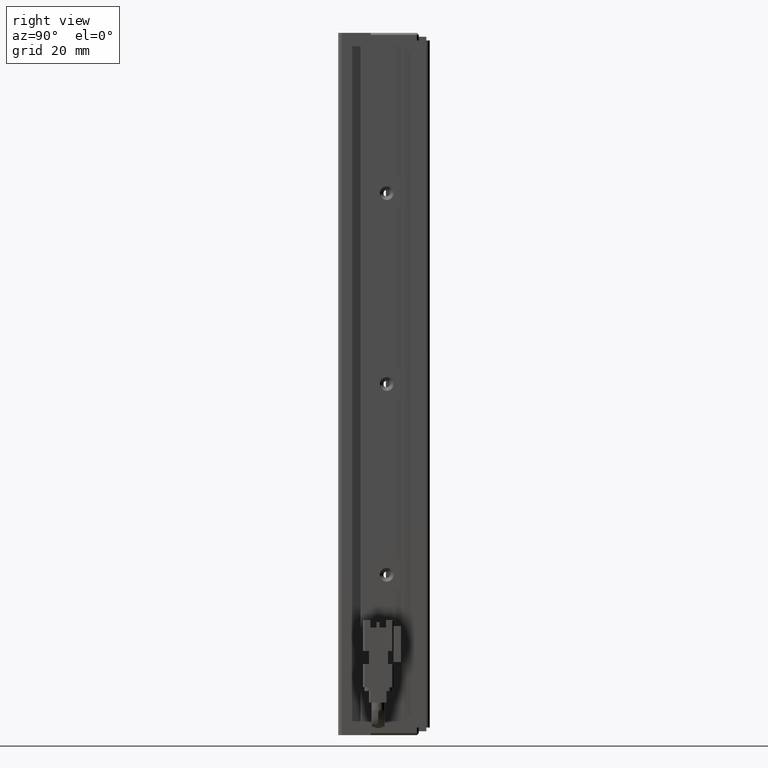
[diagram: clean part render]
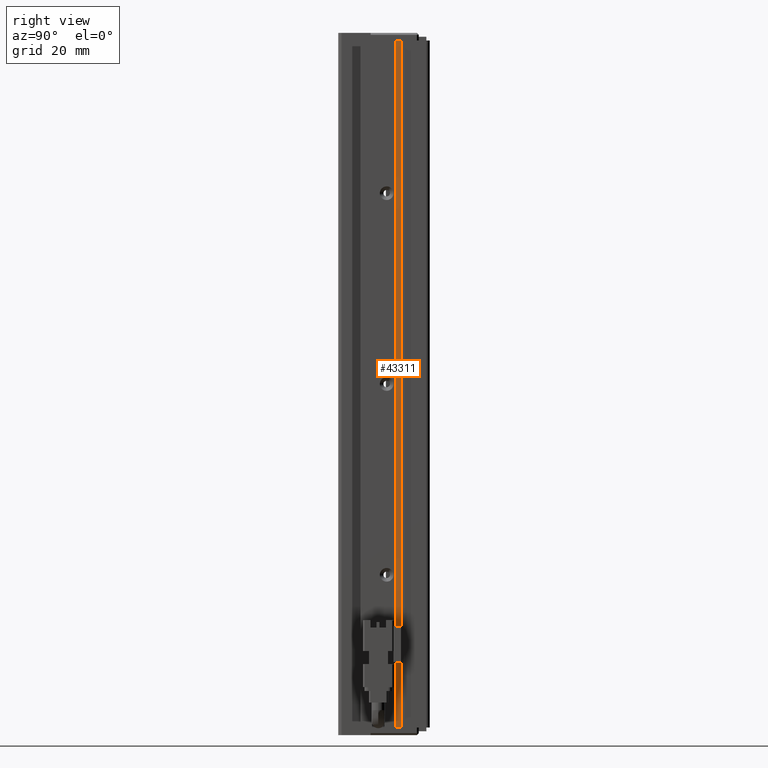
[diagram: same view with one face highlighted and labeled with its STEP entity id]
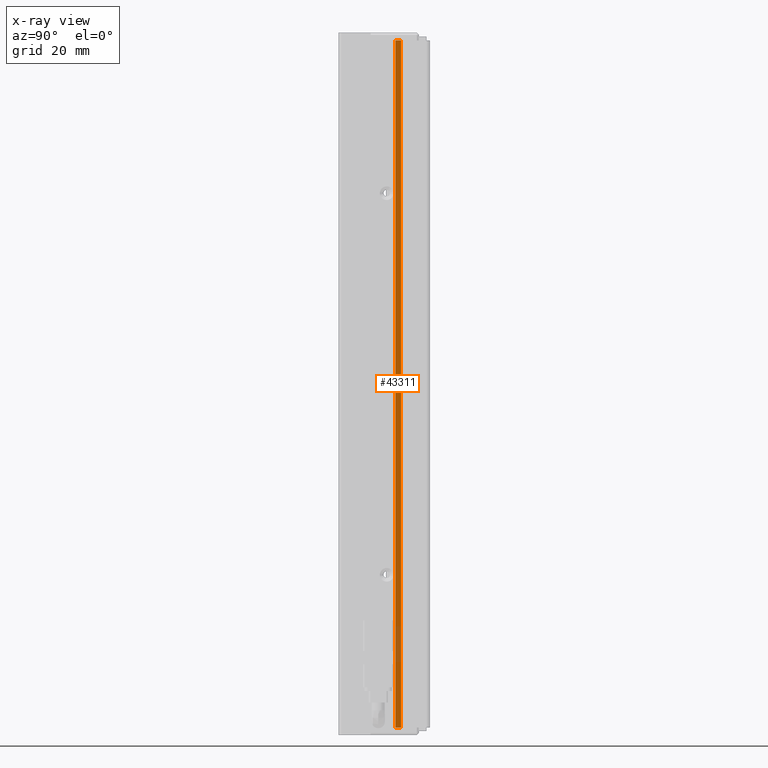
[diagram: x-ray of the same camera — body ghosted, the highlighted face saturated]
A machine part, right view. The second image highlights one B-rep face of the part: STEP entity #43311.
The next image is the same camera in x-ray: the body ghosted, the highlighted face saturated — about 5% of this face is hidden behind the body in this view.
In plain terms, the highlighted planar face has unit normal (1, 0, -0).
Its self-contained STEP definition (entity closure, byte-faithful):
#81 = CARTESIAN_POINT ( 'NONE',  ( 50.92537974683541800, 25.99073232304837700, -205.0000000000000300 ) ) ;
#800 = EDGE_LOOP ( 'NONE', ( #39021, #40956, #33603, #33309 ) ) ;
#3511 = VECTOR ( 'NONE', #10371, 1000.000000000000000 ) ;
#4401 = DIRECTION ( 'NONE',  ( -1.156482317317875500E-015, 1.000000000000000000, 0.0000000000000000000 ) ) ;
#6630 = EDGE_CURVE ( 'NONE', #31953, #28653, #19250, .T. ) ;
#7853 = DIRECTION ( 'NONE',  ( 1.000000000000000000, 1.156482317317875500E-015, -0.0000000000000000000 ) ) ;
#9641 = CARTESIAN_POINT ( 'NONE',  ( 50.92537974683541800, 27.49073232304837000, -205.0000000000000300 ) ) ;
#10371 = DIRECTION ( 'NONE',  ( 1.156482317317875500E-015, -1.000000000000000000, -0.0000000000000000000 ) ) ;
#11954 = PLANE ( 'NONE',  #38753 ) ;
#13475 = LINE ( 'NONE', #25937, #3511 ) ;
#13611 = CARTESIAN_POINT ( 'NONE',  ( 50.92537974683541800, 27.49073232304837000, -23.00000000000000700 ) ) ;
#13753 = DIRECTION ( 'NONE',  ( 0.0000000000000000000, 0.0000000000000000000, 1.000000000000000000 ) ) ;
#14183 = EDGE_CURVE ( 'NONE', #41738, #31953, #30752, .T. ) ;
#15375 = EDGE_CURVE ( 'NONE', #28653, #46902, #13475, .T. ) ;
#16015 = FACE_OUTER_BOUND ( 'NONE', #800, .T. ) ;
#18066 = VECTOR ( 'NONE', #28809, 1000.000000000000000 ) ;
#19250 = LINE ( 'NONE', #13611, #18066 ) ;
#22994 = VECTOR ( 'NONE', #13753, 1000.000000000000000 ) ;
#23267 = CARTESIAN_POINT ( 'NONE',  ( 50.92537974683544600, 7.083797468354449100, -205.0000000000000300 ) ) ;
#23282 = CARTESIAN_POINT ( 'NONE',  ( 50.92537974683541800, 27.49073232304837000, -24.99999999999999300 ) ) ;
#25937 = CARTESIAN_POINT ( 'NONE',  ( 50.92537974683544600, 7.083797468354449100, -25.00000000000000700 ) ) ;
#28653 = VERTEX_POINT ( 'NONE', #23282 ) ;
#28809 = DIRECTION ( 'NONE',  ( 0.0000000000000000000, 0.0000000000000000000, 1.000000000000000000 ) ) ;
#30752 = LINE ( 'NONE', #23267, #45970 ) ;
#31953 = VERTEX_POINT ( 'NONE', #9641 ) ;
#33309 = ORIENTED_EDGE ( 'NONE', *, *, #38452, .F. ) ;
#33603 = ORIENTED_EDGE ( 'NONE', *, *, #15375, .T. ) ;
#34064 = CARTESIAN_POINT ( 'NONE',  ( 50.92537974683544600, 7.083797468354449100, -23.00000000000000700 ) ) ;
#37566 = LINE ( 'NONE', #47437, #22994 ) ;
#37625 = DIRECTION ( 'NONE',  ( -1.156482317317875500E-015, 1.000000000000000000, 0.0000000000000000000 ) ) ;
#38452 = EDGE_CURVE ( 'NONE', #41738, #46902, #37566, .T. ) ;
#38753 = AXIS2_PLACEMENT_3D ( 'NONE', #34064, #7853, #37625 ) ;
#39021 = ORIENTED_EDGE ( 'NONE', *, *, #14183, .T. ) ;
#40956 = ORIENTED_EDGE ( 'NONE', *, *, #6630, .T. ) ;
#41738 = VERTEX_POINT ( 'NONE', #81 ) ;
#43113 = CARTESIAN_POINT ( 'NONE',  ( 50.92537974683541800, 25.99073232304837700, -24.99999999999999300 ) ) ;
#43311 = ADVANCED_FACE ( 'NONE', ( #16015 ), #11954, .T. ) ;
#45970 = VECTOR ( 'NONE', #4401, 1000.000000000000000 ) ;
#46902 = VERTEX_POINT ( 'NONE', #43113 ) ;
#47437 = CARTESIAN_POINT ( 'NONE',  ( 50.92537974683541800, 25.99073232304837700, -23.00000000000000700 ) ) ;